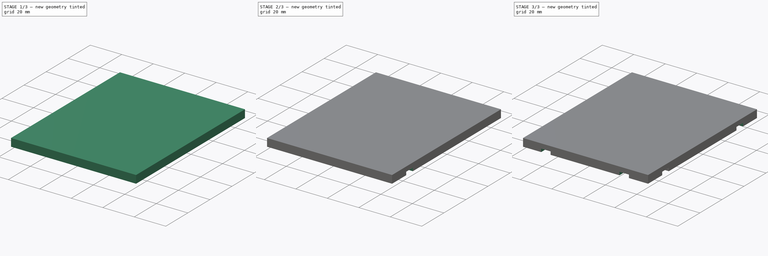
[diagram: build sequence overview — one tinted view per stage of 3, left to right]
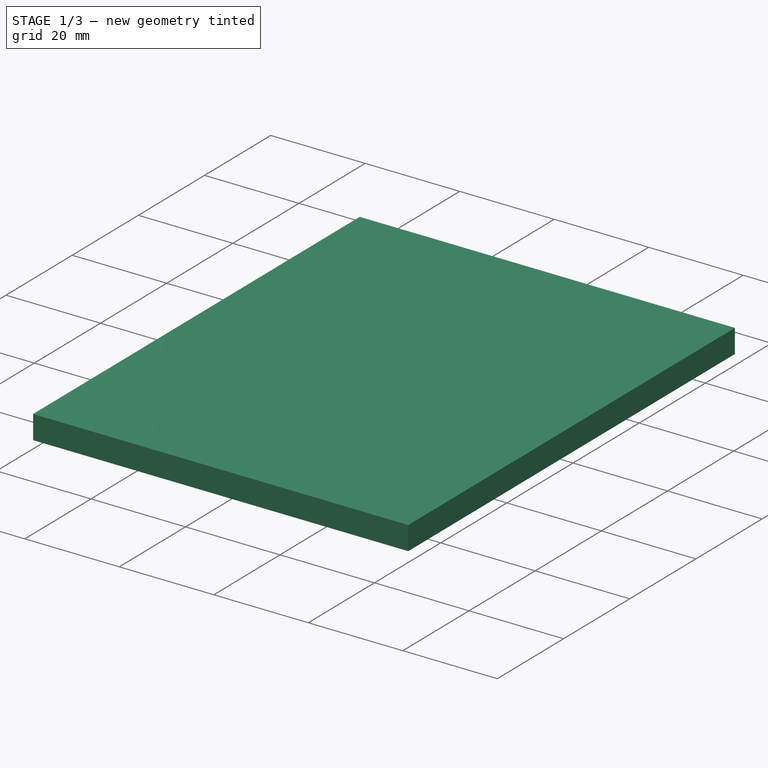
[diagram: stage 1 of 3 — iso view after this stage's code; geometry added in this stage tinted green]
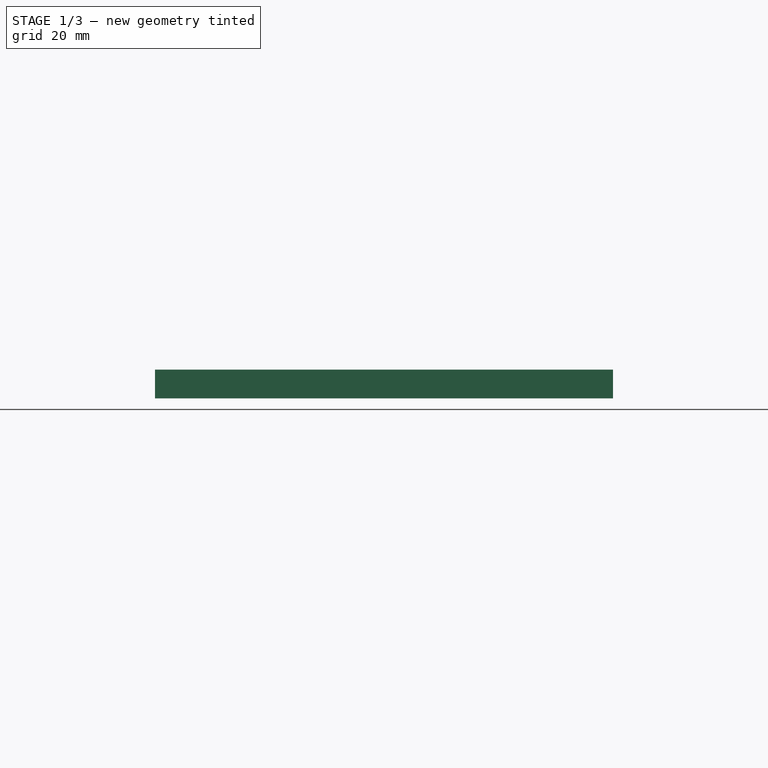
[diagram: stage 1 of 3 — front view after this stage's code; geometry added in this stage tinted green]
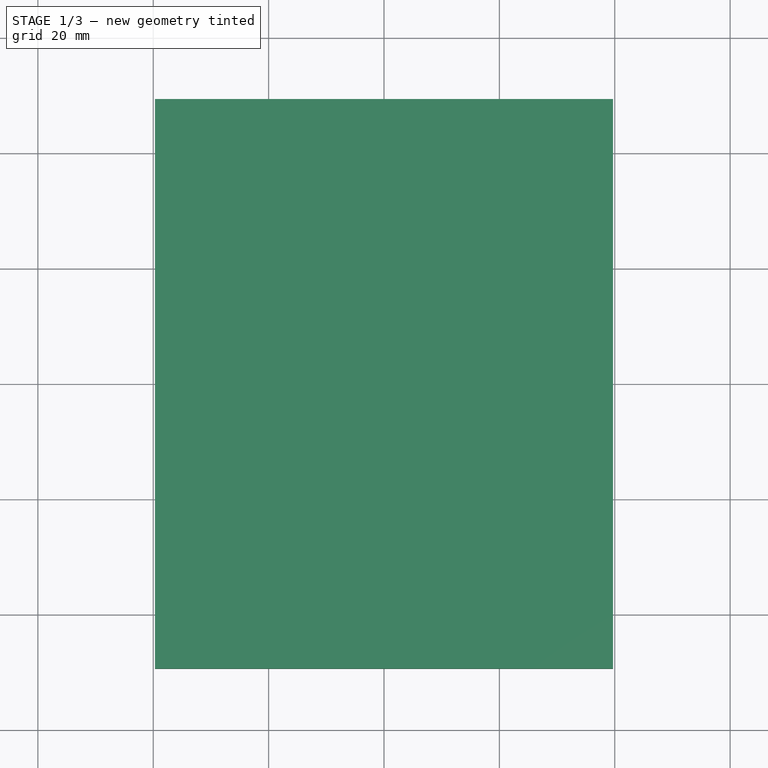
[diagram: stage 1 of 3 — top view after this stage's code; geometry added in this stage tinted green]
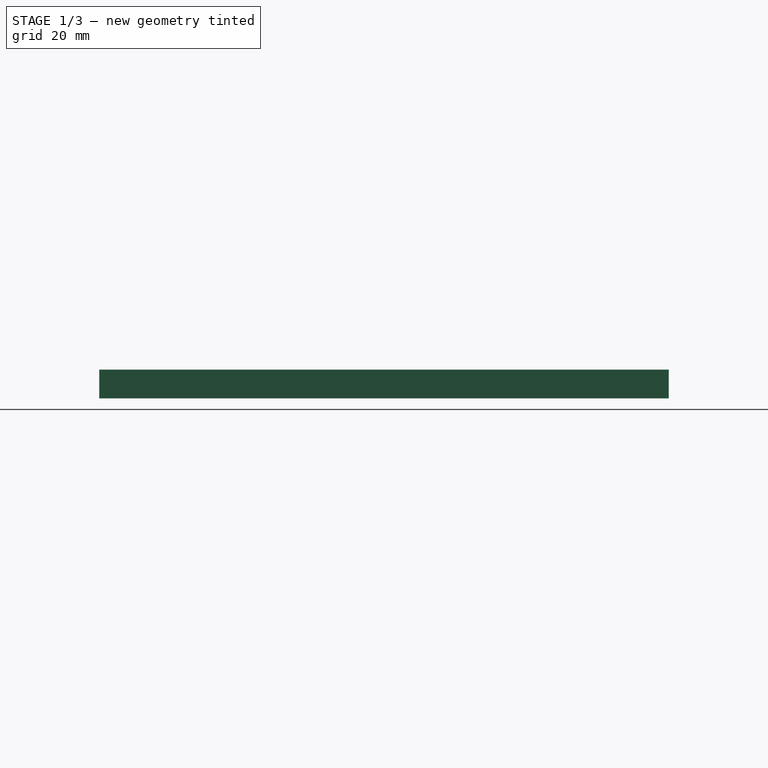
[diagram: stage 1 of 3 — right view after this stage's code; geometry added in this stage tinted green]
FCSTD DOCUMENT  (FreeCAD 1.0R39109 (Git))
Label: winding_dummy2
License: All rights reserved
LicenseURL: https://en.wikipedia.org/wiki/All_rights_reserved
objects: Sketcher::SketchObject×5, PartDesign::Pocket×4, PartDesign::Pad×1, PartDesign::Body×1
note: 26 computed .brp shape members not serialized (recipe doc carries the construction recipe); baked Part::Feature solids carry a one-line shape summary decoded from their .brp

FEATURE [Sketcher::SketchObject] Sketch002
  ArcFitTolerance = 1e-06
  FullyConstrained = true
  MakeInternals = false
  MapMode = 5
  Placement = pos=(0,0,0) rot=(1,0,0;3.14159rad)
  sketch-geometry (8):
    g0: LineSegment StartX=-32.7 StartY=42.365 StartZ=0 EndX=-32.7 EndY=-42.365 EndZ=0
    g1: LineSegment StartX=-32.7 StartY=-42.365 StartZ=0 EndX=32.7 EndY=-42.365 EndZ=0
    g2: LineSegment StartX=32.7 StartY=-42.365 StartZ=0 EndX=32.7 EndY=42.365 EndZ=0
    g3: LineSegment StartX=32.7 StartY=42.365 StartZ=0 EndX=-32.7 EndY=42.365 EndZ=0
    g4: LineSegment StartX=-34.7 StartY=44.365 StartZ=0 EndX=-34.7 EndY=-44.365 EndZ=0
    g5: LineSegment StartX=-34.7 StartY=-44.365 StartZ=0 EndX=34.7 EndY=-44.365 EndZ=0
    g6: LineSegment StartX=34.7 StartY=-44.365 StartZ=0 EndX=34.7 EndY=44.365 EndZ=0
    g7: LineSegment StartX=34.7 StartY=44.365 StartZ=0 EndX=-34.7 EndY=44.365 EndZ=0
  constraints (24):
    c: Coincident(g0,g1)
    c: Coincident(g1,g2)
    c: Coincident(g2,g3)
    c: Coincident(g3,g0)
    c: Vertical(g0)
    c: Vertical(g2)
    c: Horizontal(g1)
    c: Horizontal(g3)
    c: Distance(g-6,g1) = 0.5
    c: Distance(g0,g-3) = 0.5
    c: Distance(g2,g-5) = 0.5
    c: Distance(g3,g-4) = 0.5
    c: Coincident(g4,g5)
    c: Coincident(g5,g6)
    c: Coincident(g6,g7)
    c: Coincident(g7,g4)
    c: Vertical(g4)
    c: Vertical(g6)
    c: Horizontal(g5)
    c: Horizontal(g7)
    c: Distance(g6,g2) = 2
    c: Distance(g7,g3) = 2
    c: Distance(g4,g0) = 2
    c: Distance(g5,g1) = 2
FEATURE [Sketcher::SketchObject] Sketch
  ArcFitTolerance = 1e-06
  AttachmentSupport = -> [XY_Plane]
  ExternalGeometry = -> [Sketch002]
  FullyConstrained = true
  MakeInternals = false
  MapMode = 5
  sketch-geometry (4):
    g0: LineSegment StartX=-39.7 StartY=49.365 StartZ=0 EndX=-39.7 EndY=-49.365 EndZ=0
    g1: LineSegment StartX=-39.7 StartY=-49.365 StartZ=0 EndX=39.7 EndY=-49.365 EndZ=0
    g2: LineSegment StartX=39.7 StartY=-49.365 StartZ=0 EndX=39.7 EndY=49.365 EndZ=0
    g3: LineSegment StartX=39.7 StartY=49.365 StartZ=0 EndX=-39.7 EndY=49.365 EndZ=0
  constraints (12):
    c: Coincident(g0,g1)
    c: Coincident(g1,g2)
    c: Coincident(g2,g3)
    c: Coincident(g3,g0)
    c: Vertical(g0)
    c: Vertical(g2)
    c: Horizontal(g1)
    c: Horizontal(g3)
    c: Distance(g3,g-3) = 5
    c: Distance(g0,g-4) = 5
    c: Distance(g2,g-5) = 5
    c: Distance(g-6,g1) = 5
FEATURE [PartDesign::Pad] Pad
  Direction = (0,0,1)
  Length = 5
  Length2 = 10
  Profile = -> Sketch
  ReferenceAxis = -> Sketch [N_Axis]
  Refine = true
  Suppressed = false
  Type = 0
FEATURE [PartDesign::Pocket] Pocket
  BaseFeature = -> Pad
  Direction = (0,1e-16,1)
  Length = 2
  Length2 = 5
  Profile = -> Sketch002
  ReferenceAxis = -> Sketch002 [N_Axis]
  Refine = true
  Suppressed = false
  Type = 0
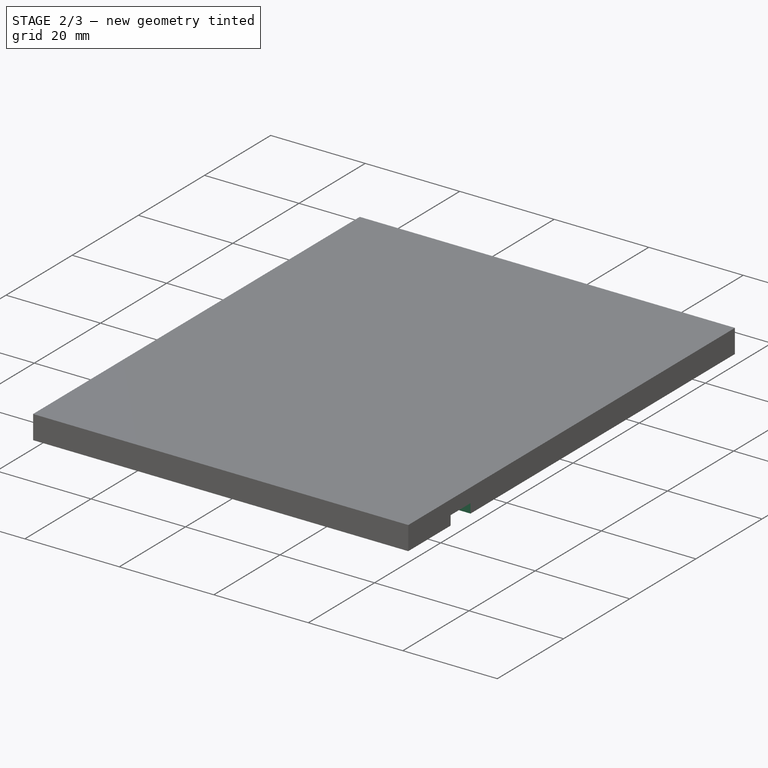
[diagram: stage 2 of 3 — iso view after this stage's code; geometry added in this stage tinted green]
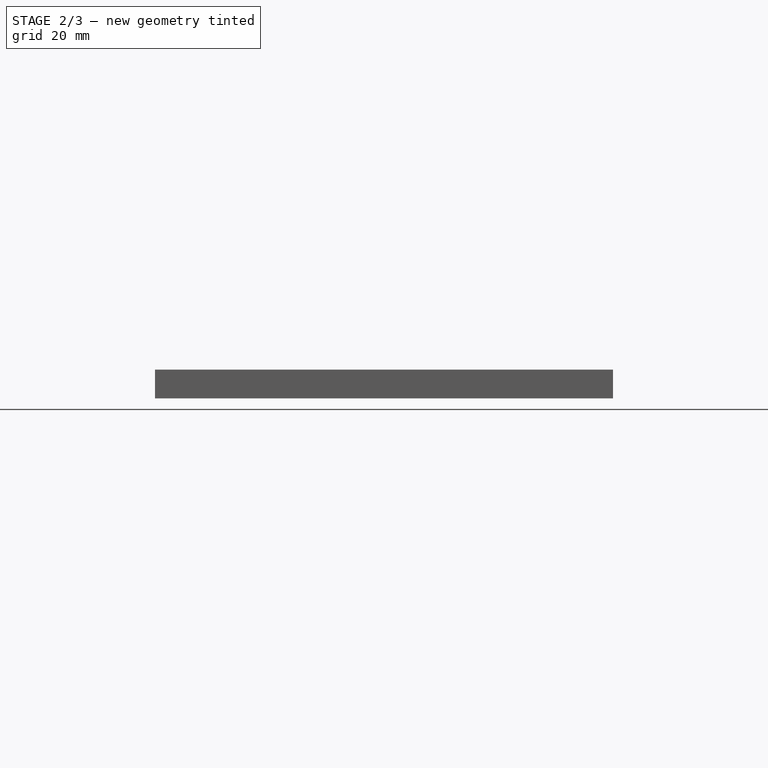
[diagram: stage 2 of 3 — front view after this stage's code; geometry added in this stage tinted green]
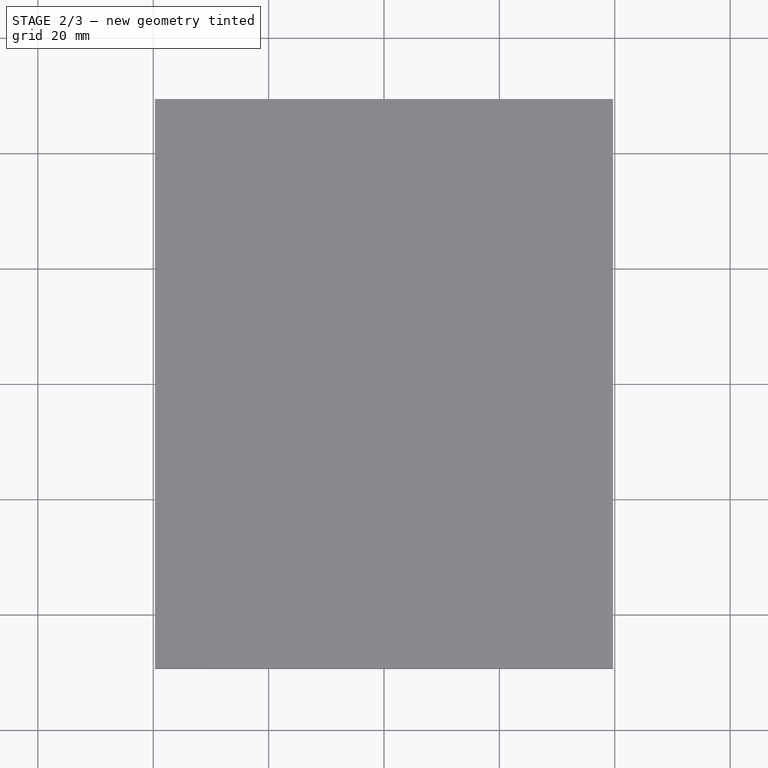
[diagram: stage 2 of 3 — top view after this stage's code; geometry added in this stage tinted green]
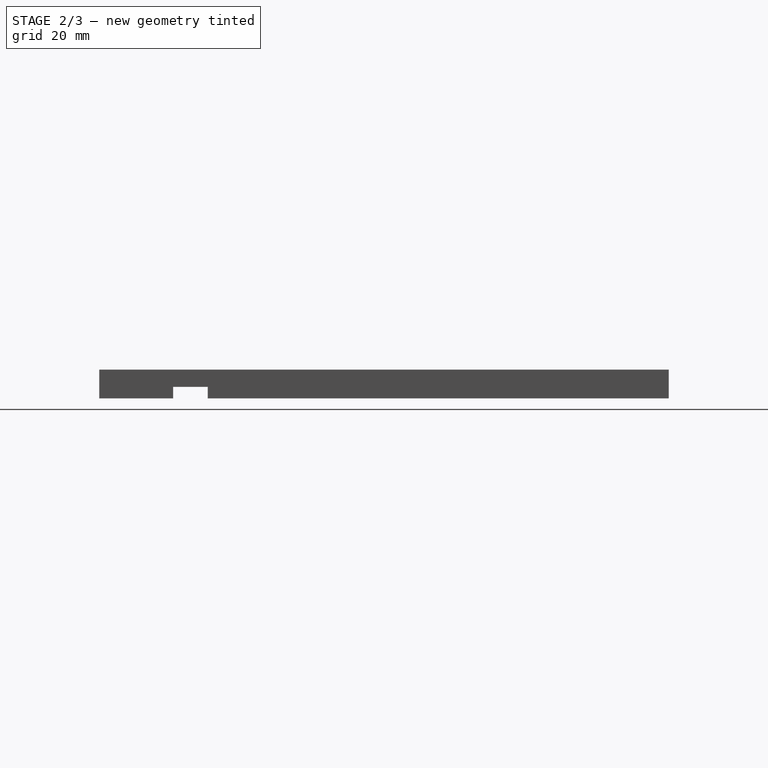
[diagram: stage 2 of 3 — right view after this stage's code; geometry added in this stage tinted green]
FEATURE [Sketcher::SketchObject] Sketch003
  ArcFitTolerance = 1e-06
  AttachmentSupport = -> [Pocket]
  FullyConstrained = false
  MakeInternals = false
  MapMode = 5
  Placement = pos=(0,0,0) rot=(1,0,0;3.14159rad)
  sketch-geometry (4):
    g0: LineSegment StartX=-45.1428 StartY=36.5476 StartZ=0 EndX=-45.1428 EndY=30.5476 EndZ=0
    g1: LineSegment StartX=-45.1428 StartY=30.5476 StartZ=0 EndX=48.3896 EndY=30.5476 EndZ=0
    g2: LineSegment StartX=48.3896 StartY=30.5476 StartZ=0 EndX=48.3896 EndY=36.5476 EndZ=0
    g3: LineSegment StartX=48.3896 StartY=36.5476 StartZ=0 EndX=-45.1428 EndY=36.5476 EndZ=0
  constraints (9):
    c: Coincident(g0,g1)
    c: Coincident(g1,g2)
    c: Coincident(g2,g3)
    c: Coincident(g3,g0)
    c: Vertical(g0)
    c: Vertical(g2)
    c: Horizontal(g1)
    c: Horizontal(g3)
    c: DistanceY(g0,g0) = 6
FEATURE [PartDesign::Pocket] Pocket001
  BaseFeature = -> Pocket
  Direction = (0,0,1)
  Length = 2
  Length2 = 5
  Profile = -> Sketch003
  ReferenceAxis = -> Sketch003 [N_Axis]
  Refine = true
  Suppressed = false
  Type = 0
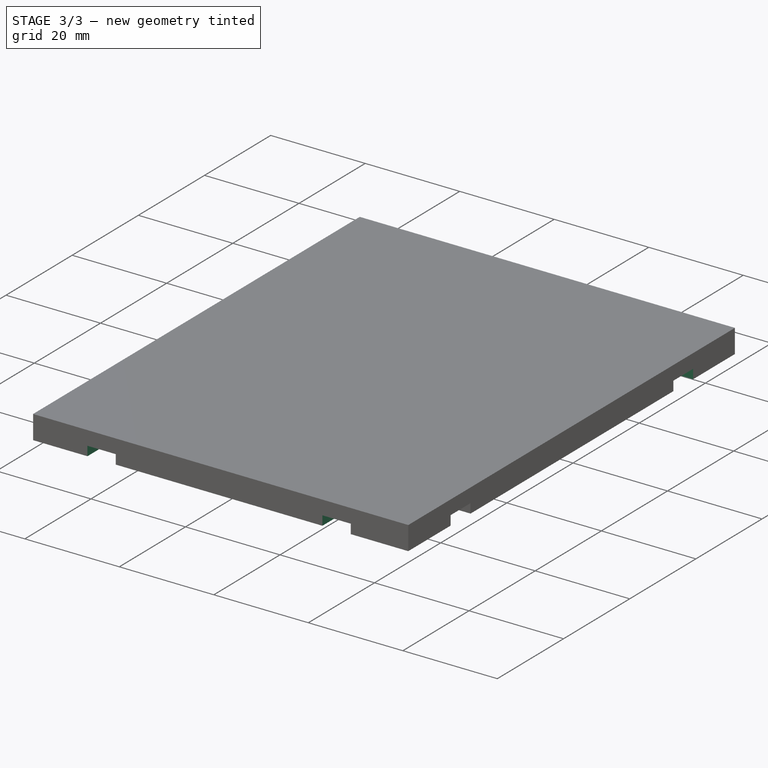
[diagram: stage 3 of 3 — iso view after this stage's code; geometry added in this stage tinted green]
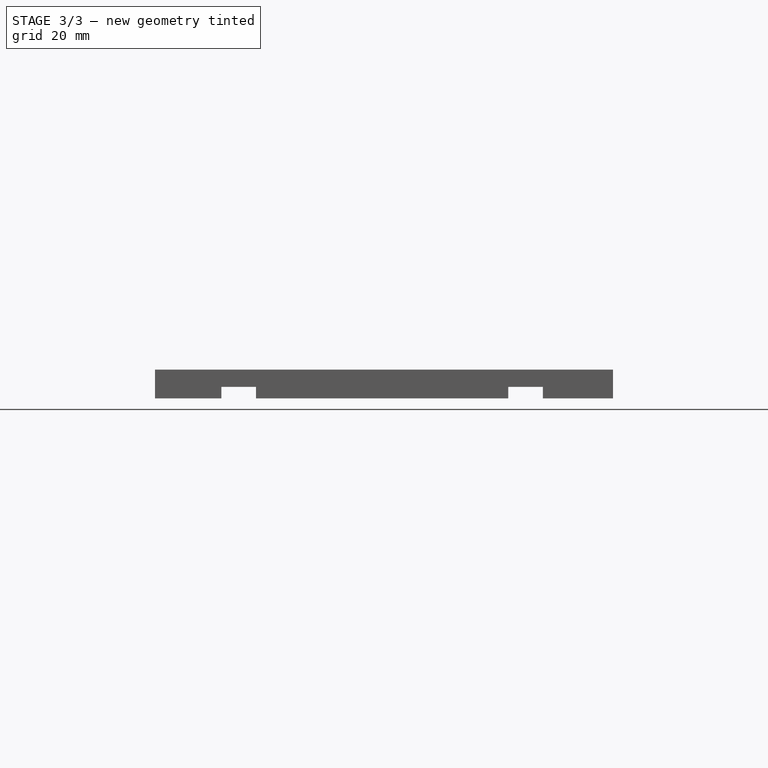
[diagram: stage 3 of 3 — front view after this stage's code; geometry added in this stage tinted green]
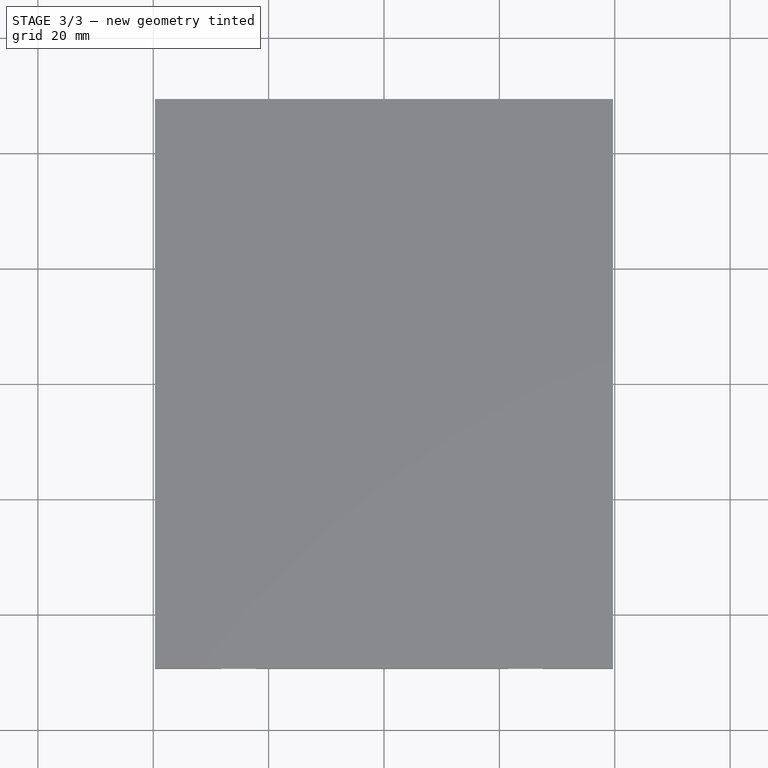
[diagram: stage 3 of 3 — top view after this stage's code; geometry added in this stage tinted green]
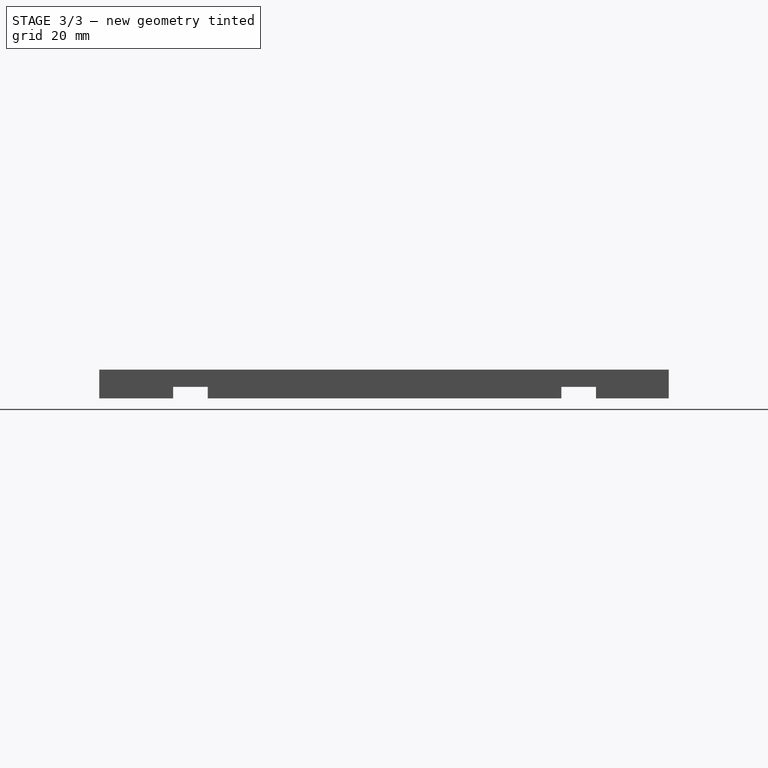
[diagram: stage 3 of 3 — right view after this stage's code; geometry added in this stage tinted green]
FEATURE [Sketcher::SketchObject] Sketch005
  ArcFitTolerance = 1e-06
  AttachmentSupport = -> [Pocket001]
  FullyConstrained = false
  MakeInternals = false
  MapMode = 5
  Placement = pos=(0,0,0) rot=(1,0,0;3.14159rad)
  sketch-geometry (4):
    g0: LineSegment StartX=-48.5644 StartY=-30.7448 StartZ=0 EndX=-48.5644 EndY=-36.7448 EndZ=0
    g1: LineSegment StartX=-48.5644 StartY=-36.7448 StartZ=0 EndX=51.8202 EndY=-36.7448 EndZ=0
    g2: LineSegment StartX=51.8202 StartY=-36.7448 StartZ=0 EndX=51.8202 EndY=-30.7448 EndZ=0
    g3: LineSegment StartX=51.8202 StartY=-30.7448 StartZ=0 EndX=-48.5644 EndY=-30.7448 EndZ=0
  constraints (9):
    c: Coincident(g0,g1)
    c: Coincident(g1,g2)
    c: Coincident(g2,g3)
    c: Coincident(g3,g0)
    c: Vertical(g0)
    c: Vertical(g2)
    c: Horizontal(g1)
    c: Horizontal(g3)
    c: DistanceY(g0,g0) = 6
FEATURE [PartDesign::Pocket] Pocket002
  BaseFeature = -> Pocket001
  Direction = (0,0,1)
  Length = 2
  Length2 = 5
  Profile = -> Sketch005
  ReferenceAxis = -> Sketch005 [N_Axis]
  Refine = true
  Suppressed = false
  Type = 0
FEATURE [Sketcher::SketchObject] Sketch006
  ArcFitTolerance = 1e-06
  AttachmentSupport = -> [Pocket002]
  FullyConstrained = false
  MakeInternals = false
  MapMode = 5
  Placement = pos=(0,0,0) rot=(1,0,0;3.14159rad)
  sketch-geometry (8):
    g0: LineSegment StartX=-28.1951 StartY=52.3379 StartZ=0 EndX=-28.1951 EndY=-60.7232 EndZ=0
    g1: LineSegment StartX=-28.1951 StartY=-60.7232 StartZ=0 EndX=-22.1951 EndY=-60.7232 EndZ=0
    g2: LineSegment StartX=-22.1951 StartY=-60.7232 StartZ=0 EndX=-22.1951 EndY=52.3379 EndZ=0
    g3: LineSegment StartX=-22.1951 StartY=52.3379 StartZ=0 EndX=-28.1951 EndY=52.3379 EndZ=0
    g4: LineSegment StartX=21.535 StartY=52.5092 StartZ=0 EndX=21.535 EndY=-58.6675 EndZ=0
    g5: LineSegment StartX=21.535 StartY=-58.6675 StartZ=0 EndX=27.535 EndY=-58.6675 EndZ=0
    g6: LineSegment StartX=27.535 StartY=-58.6675 StartZ=0 EndX=27.535 EndY=52.5092 EndZ=0
    g7: LineSegment StartX=27.535 StartY=52.5092 StartZ=0 EndX=21.535 EndY=52.5092 EndZ=0
  constraints (18):
    c: Coincident(g0,g1)
    c: Coincident(g1,g2)
    c: Coincident(g2,g3)
    c: Coincident(g3,g0)
    c: Vertical(g0)
    c: Vertical(g2)
    c: Horizontal(g1)
    c: Horizontal(g3)
    c: Coincident(g4,g5)
    c: Coincident(g5,g6)
    c: Coincident(g6,g7)
    c: Coincident(g7,g4)
    c: Vertical(g4)
    c: Vertical(g6)
    c: Horizontal(g5)
    c: Horizontal(g7)
    c: DistanceX(g3,g3) = 6
    c: DistanceX(g5,g5) = 6
FEATURE [PartDesign::Pocket] Pocket003
  BaseFeature = -> Pocket002
  Direction = (0,0,1)
  Length = 2
  Length2 = 5
  Profile = -> Sketch006
  ReferenceAxis = -> Sketch006 [N_Axis]
  Refine = true
  Suppressed = false
  Type = 0
FEATURE [PartDesign::Body] Body
  AllowCompound = false
  Group = -> [Sketch002,Sketch,Pad,Pocket,Sketch003,Pocket001,Sketch005,Pocket002,Sketch006,Pocket003]
  Origin = -> Origin
  Tip = -> Pocket003
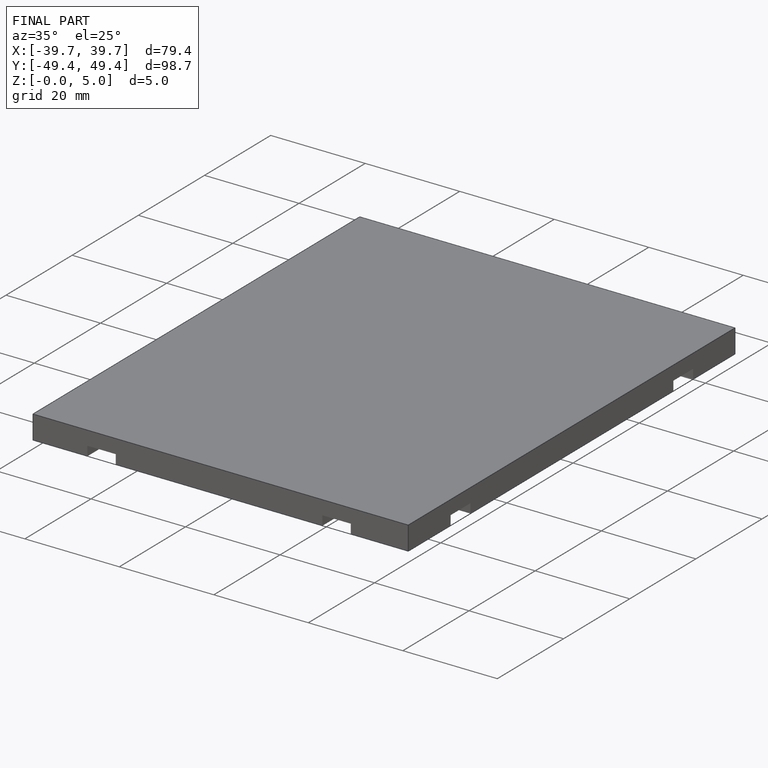
[diagram: finished part — iso view with bounding-box wireframe]
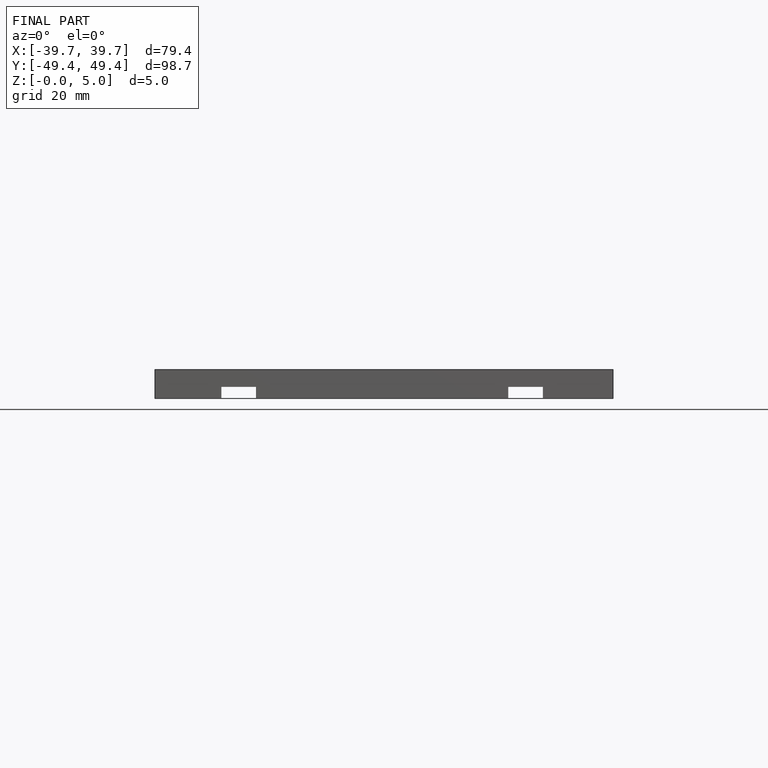
[diagram: finished part — front view with bounding-box wireframe]
